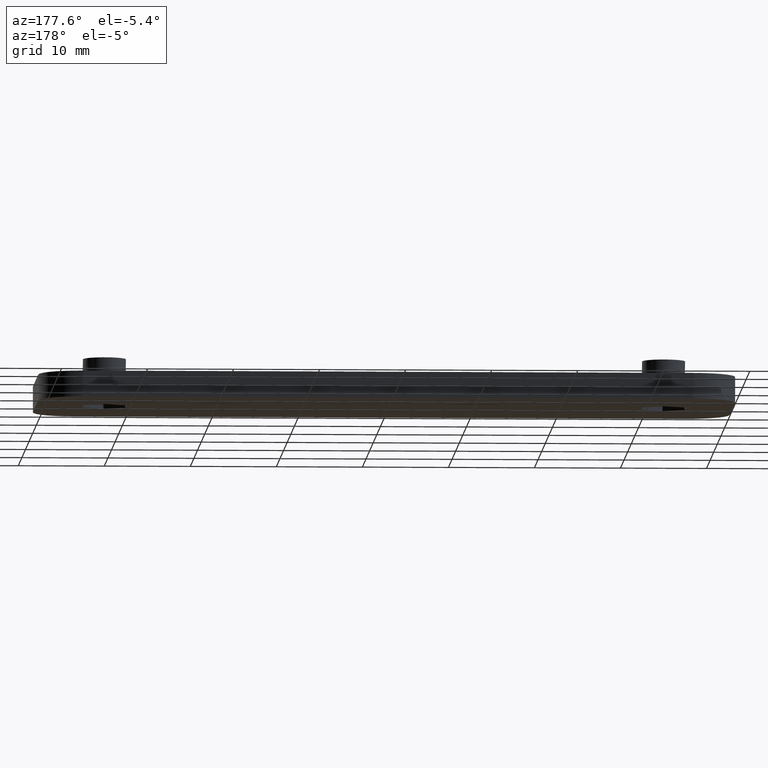
[diagram: clean part render]
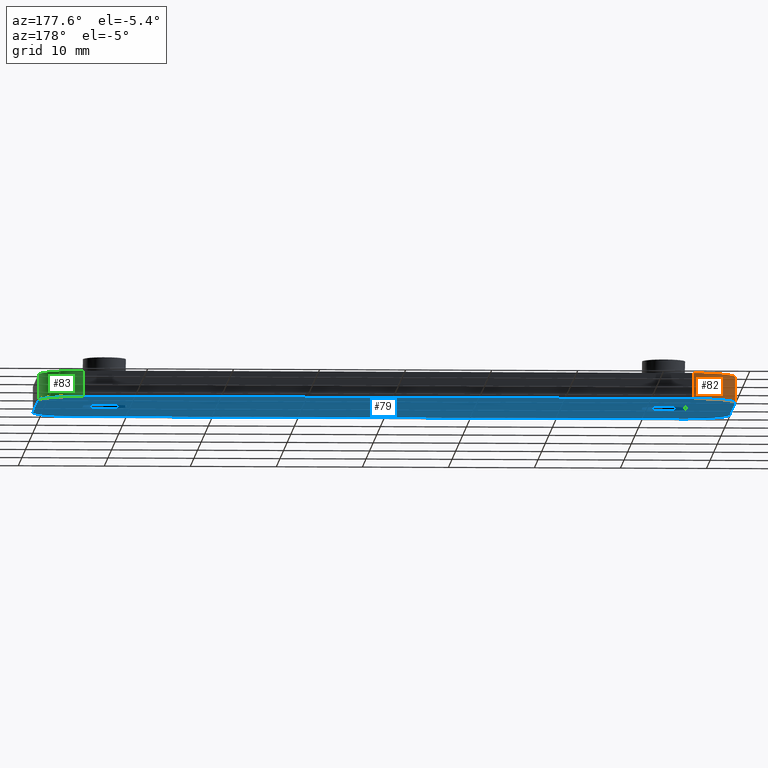
[diagram: same view with three faces highlighted in distinct colors, each labeled with its STEP entity id]
A machine part, auxiliary view with three faces highlighted in distinct colors.
Their STEP definitions:

[orange] entity #82 — the highlighted cylindrical surface (partial cylindrical patch) has radius 5 mm, axis along (-0, 0, 1).
#82 = ADVANCED_FACE( '', ( #160 ), #161, .T. );
#160 = FACE_OUTER_BOUND( '', #293, .T. );
#161 = CYLINDRICAL_SURFACE( '', #294, 5.00000000000000 );
#293 = EDGE_LOOP( '', ( #502, #503, #504, #505 ) );
#294 = AXIS2_PLACEMENT_3D( '', #506, #507, #508 );
#502 = ORIENTED_EDGE( '', *, *, #948, .F. );
#503 = ORIENTED_EDGE( '', *, *, #895, .T. );
#504 = ORIENTED_EDGE( '', *, *, #922, .T. );
#505 = ORIENTED_EDGE( '', *, *, #946, .F. );
#506 = CARTESIAN_POINT( '', ( -35.5000000000000, 7.50000000000001, 98.3338434434793 ) );
#507 = DIRECTION( '', ( -1.60751816480226E-016, 1.81794180051289E-016, 1.00000000000000 ) );
#508 = DIRECTION( '', ( -1.00000000000000, -5.90573087550522E-032, -1.60751816480226E-016 ) );
#895 = EDGE_CURVE( '', #1057, #1055, #1058, .T. );
#922 = EDGE_CURVE( '', #1055, #1108, #1110, .T. );
#946 = EDGE_CURVE( '', #1153, #1108, #1155, .T. );
#948 = EDGE_CURVE( '', #1057, #1153, #1157, .T. );
#1055 = VERTEX_POINT( '', #1314 );
#1057 = VERTEX_POINT( '', #1317 );
#1058 = CIRCLE( '', #1318, 5.00000000000000 );
#1108 = VERTEX_POINT( '', #1387 );
#1110 = LINE( '', #1390, #1391 );
#1153 = VERTEX_POINT( '', #1453 );
#1155 = CIRCLE( '', #1456, 5.00000000000000 );
#1157 = LINE( '', #1459, #1460 );
#1314 = CARTESIAN_POINT( '', ( -35.5000000000000, 12.5000000000000, 2.99999999999999 ) );
#1317 = CARTESIAN_POINT( '', ( -40.5000000000000, 7.50000000000000, 2.99999999999999 ) );
#1318 = AXIS2_PLACEMENT_3D( '', #1673, #1674, #1675 );
#1387 = CARTESIAN_POINT( '', ( -35.5000000000000, 12.5000000000000, -1.46431667789534E-014 ) );
#1390 = CARTESIAN_POINT( '', ( -35.5000000000000, 12.5000000000000, 98.3338434434793 ) );
#1391 = VECTOR( '', #1714, 1000.00000000000 );
#1453 = CARTESIAN_POINT( '', ( -40.5000000000000, 7.49999999999999, -1.43370151904978E-014 ) );
#1456 = AXIS2_PLACEMENT_3D( '', #1744, #1745, #1746 );
#1459 = CARTESIAN_POINT( '', ( -40.5000000000000, 7.50000000000001, 98.3338434434793 ) );
#1460 = VECTOR( '', #1748, 1000.00000000000 );
#1673 = CARTESIAN_POINT( '', ( -35.5000000000000, 7.50000000000000, 2.99999999999999 ) );
#1674 = DIRECTION( '', ( 0.000000000000000, -6.12303176911189E-017, -1.00000000000000 ) );
#1675 = DIRECTION( '', ( 0.000000000000000, 1.00000000000000, -6.12303176911189E-017 ) );
#1714 = DIRECTION( '', ( 1.60751816480226E-016, -1.81794180051289E-016, -1.00000000000000 ) );
#1744 = CARTESIAN_POINT( '', ( -35.5000000000000, 7.49999999999999, -1.43370151904978E-014 ) );
#1745 = DIRECTION( '', ( 0.000000000000000, -6.12303176911189E-017, -1.00000000000000 ) );
#1746 = DIRECTION( '', ( 0.000000000000000, 1.00000000000000, -6.12303176911189E-017 ) );
#1748 = DIRECTION( '', ( 1.60751816480226E-016, -1.81794180051289E-016, -1.00000000000000 ) );

[blue] entity #79 — the highlighted planar face has unit normal (0, -0, -1).
#79 = ADVANCED_FACE( '', ( #152, #153, #154 ), #155, .T. );
#152 = FACE_BOUND( '', #285, .T. );
#153 = FACE_BOUND( '', #286, .T. );
#154 = FACE_OUTER_BOUND( '', #287, .T. );
#155 = PLANE( '', #288 );
#285 = EDGE_LOOP( '', ( #465, #466, #467, #468, #469, #470 ) );
#286 = EDGE_LOOP( '', ( #471, #472, #473, #474, #475, #476 ) );
#287 = EDGE_LOOP( '', ( #477, #478, #479, #480, #481, #482, #483, #484 ) );
#288 = AXIS2_PLACEMENT_3D( '', #485, #486, #487 );
#465 = ORIENTED_EDGE( '', *, *, #928, .F. );
#466 = ORIENTED_EDGE( '', *, *, #929, .F. );
#467 = ORIENTED_EDGE( '', *, *, #930, .F. );
#468 = ORIENTED_EDGE( '', *, *, #931, .F. );
#469 = ORIENTED_EDGE( '', *, *, #932, .F. );
#470 = ORIENTED_EDGE( '', *, *, #933, .F. );
#471 = ORIENTED_EDGE( '', *, *, #934, .F. );
#472 = ORIENTED_EDGE( '', *, *, #935, .F. );
#473 = ORIENTED_EDGE( '', *, *, #936, .F. );
#474 = ORIENTED_EDGE( '', *, *, #937, .F. );
#475 = ORIENTED_EDGE( '', *, *, #938, .F. );
#476 = ORIENTED_EDGE( '', *, *, #939, .F. );
#477 = ORIENTED_EDGE( '', *, *, #921, .T. );
#478 = ORIENTED_EDGE( '', *, *, #940, .T. );
#479 = ORIENTED_EDGE( '', *, *, #941, .T. );
#480 = ORIENTED_EDGE( '', *, *, #942, .T. );
#481 = ORIENTED_EDGE( '', *, *, #943, .T. );
#482 = ORIENTED_EDGE( '', *, *, #944, .T. );
#483 = ORIENTED_EDGE( '', *, *, #945, .T. );
#484 = ORIENTED_EDGE( '', *, *, #946, .T. );
#485 = CARTESIAN_POINT( '', ( 53.0000000000000, -8.49741356322415E-031, -1.38777878078145E-014 ) );
#486 = DIRECTION( '', ( 0.000000000000000, -6.12303176911189E-017, -1.00000000000000 ) );
#487 = DIRECTION( '', ( 6.12303176911189E-017, 1.00000000000000, -6.12303176911189E-017 ) );
#921 = EDGE_CURVE( '', #1108, #1106, #1109, .T. );
#928 = EDGE_CURVE( '', #1119, #1120, #1121, .T. );
#929 = EDGE_CURVE( '', #1122, #1119, #1123, .T. );
#930 = EDGE_CURVE( '', #1124, #1122, #1125, .T. );
#931 = EDGE_CURVE( '', #1126, #1124, #1127, .T. );
#932 = EDGE_CURVE( '', #1128, #1126, #1129, .T. );
#933 = EDGE_CURVE( '', #1120, #1128, #1130, .T. );
#934 = EDGE_CURVE( '', #1131, #1132, #1133, .T. );
#935 = EDGE_CURVE( '', #1134, #1131, #1135, .T. );
#936 = EDGE_CURVE( '', #1136, #1134, #1137, .T. );
#937 = EDGE_CURVE( '', #1138, #1136, #1139, .T. );
#938 = EDGE_CURVE( '', #1140, #1138, #1141, .T. );
#939 = EDGE_CURVE( '', #1132, #1140, #1142, .T. );
#940 = EDGE_CURVE( '', #1106, #1143, #1144, .T. );
#941 = EDGE_CURVE( '', #1143, #1145, #1146, .T. );
#942 = EDGE_CURVE( '', #1145, #1147, #1148, .T. );
#943 = EDGE_CURVE( '', #1147, #1149, #1150, .T. );
#944 = EDGE_CURVE( '', #1149, #1151, #1152, .T. );
#945 = EDGE_CURVE( '', #1151, #1153, #1154, .T. );
#946 = EDGE_CURVE( '', #1153, #1108, #1155, .T. );
#1106 = VERTEX_POINT( '', #1384 );
#1108 = VERTEX_POINT( '', #1387 );
#1109 = LINE( '', #1388, #1389 );
#1119 = VERTEX_POINT( '', #1405 );
#1120 = VERTEX_POINT( '', #1406 );
#1121 = LINE( '', #1407, #1408 );
#1122 = VERTEX_POINT( '', #1409 );
#1123 = LINE( '', #1410, #1411 );
#1124 = VERTEX_POINT( '', #1412 );
#1125 = LINE( '', #1413, #1414 );
#1126 = VERTEX_POINT( '', #1415 );
#1127 = LINE( '', #1416, #1417 );
#1128 = VERTEX_POINT( '', #1418 );
#1129 = LINE( '', #1419, #1420 );
#1130 = LINE( '', #1421, #1422 );
#1131 = VERTEX_POINT( '', #1423 );
#1132 = VERTEX_POINT( '', #1424 );
#1133 = LINE( '', #1425, #1426 );
#1134 = VERTEX_POINT( '', #1427 );
#1135 = LINE( '', #1428, #1429 );
#1136 = VERTEX_POINT( '', #1430 );
#1137 = LINE( '', #1431, #1432 );
#1138 = VERTEX_POINT( '', #1433 );
#1139 = LINE( '', #1434, #1435 );
#1140 = VERTEX_POINT( '', #1436 );
#1141 = LINE( '', #1437, #1438 );
#1142 = LINE( '', #1439, #1440 );
#1143 = VERTEX_POINT( '', #1441 );
#1144 = CIRCLE( '', #1442, 5.00000000000000 );
#1145 = VERTEX_POINT( '', #1443 );
#1146 = LINE( '', #1444, #1445 );
#1147 = VERTEX_POINT( '', #1446 );
#1148 = CIRCLE( '', #1447, 5.00000000000000 );
#1149 = VERTEX_POINT( '', #1448 );
#1150 = LINE( '', #1449, #1450 );
#1151 = VERTEX_POINT( '', #1451 );
#1152 = CIRCLE( '', #1452, 5.00000000000000 );
#1153 = VERTEX_POINT( '', #1453 );
#1154 = LINE( '', #1454, #1455 );
#1155 = CIRCLE( '', #1456, 5.00000000000000 );
#1384 = CARTESIAN_POINT( '', ( 35.5000000000000, 12.5000000000000, -1.46431667789534E-014 ) );
#1387 = CARTESIAN_POINT( '', ( -35.5000000000000, 12.5000000000000, -1.46431667789534E-014 ) );
#1388 = CARTESIAN_POINT( '', ( -53.0000000000000, 12.5000000000000, -1.46431667789534E-014 ) );
#1389 = VECTOR( '', #1713, 1000.00000000000 );
#1405 = CARTESIAN_POINT( '', ( 32.5000000000000, 2.88675134594813, -1.40545445098221E-014 ) );
#1406 = CARTESIAN_POINT( '', ( 35.0000000000000, 1.44337567297408, -1.39661661588183E-014 ) );
#1407 = CARTESIAN_POINT( '', ( -13.7500000000000, 29.5892012959683, -1.56895440033931E-014 ) );
#1408 = VECTOR( '', #1720, 1000.00000000000 );
#1409 = CARTESIAN_POINT( '', ( 30.0000000000000, 1.44337567297406, -1.39661661588183E-014 ) );
#1410 = CARTESIAN_POINT( '', ( -15.0000000000000, -24.5373864405591, -1.23753558407493E-014 ) );
#1411 = VECTOR( '', #1721, 1000.00000000000 );
#1412 = CARTESIAN_POINT( '', ( 30.0000000000000, -1.44337567297407, -1.37894094568106E-014 ) );
#1413 = CARTESIAN_POINT( '', ( 30.0000000000000, 1.44337567297407, -1.39661661588183E-014 ) );
#1414 = VECTOR( '', #1722, 1000.00000000000 );
#1415 = CARTESIAN_POINT( '', ( 32.5000000000000, -2.88675134594813, -1.37010311058068E-014 ) );
#1416 = CARTESIAN_POINT( '', ( -16.2500000000000, 25.2590742770461, -1.54244089503816E-014 ) );
#1417 = VECTOR( '', #1723, 1000.00000000000 );
#1418 = CARTESIAN_POINT( '', ( 35.0000000000000, -1.44337567297406, -1.37894094568106E-014 ) );
#1419 = CARTESIAN_POINT( '', ( -12.5000000000000, -28.8675134594813, -1.21102207877378E-014 ) );
#1420 = VECTOR( '', #1724, 1000.00000000000 );
#1421 = CARTESIAN_POINT( '', ( 35.0000000000000, 1.44337567297411, -1.39661661588183E-014 ) );
#1422 = VECTOR( '', #1725, 1000.00000000000 );
#1423 = CARTESIAN_POINT( '', ( -32.5000000000000, 2.88675134594813, -1.40545445098221E-014 ) );
#1424 = CARTESIAN_POINT( '', ( -30.0000000000000, 1.44337567297407, -1.39661661588183E-014 ) );
#1425 = CARTESIAN_POINT( '', ( -30.0000000000000, 1.44337567297407, -1.39661661588183E-014 ) );
#1426 = VECTOR( '', #1726, 1000.00000000000 );
#1427 = CARTESIAN_POINT( '', ( -35.0000000000000, 1.44337567297406, -1.39661661588183E-014 ) );
#1428 = CARTESIAN_POINT( '', ( -31.2500000000000, 3.60843918243516, -1.40987336853240E-014 ) );
#1429 = VECTOR( '', #1727, 1000.00000000000 );
#1430 = CARTESIAN_POINT( '', ( -35.0000000000000, -1.44337567297407, -1.37894094568106E-014 ) );
#1431 = CARTESIAN_POINT( '', ( -35.0000000000000, 1.44337567297407, -1.39661661588183E-014 ) );
#1432 = VECTOR( '', #1728, 1000.00000000000 );
#1433 = CARTESIAN_POINT( '', ( -32.5000000000000, -2.88675134594813, -1.37010311058068E-014 ) );
#1434 = CARTESIAN_POINT( '', ( -32.5000000000000, -2.88675134594813, -1.37010311058068E-014 ) );
#1435 = VECTOR( '', #1729, 1000.00000000000 );
#1436 = CARTESIAN_POINT( '', ( -30.0000000000000, -1.44337567297406, -1.37894094568106E-014 ) );
#1437 = CARTESIAN_POINT( '', ( -28.7500000000000, -0.721687836487026, -1.38335986323125E-014 ) );
#1438 = VECTOR( '', #1730, 1000.00000000000 );
#1439 = CARTESIAN_POINT( '', ( -30.0000000000000, 1.44337567297407, -1.39661661588183E-014 ) );
#1440 = VECTOR( '', #1731, 1000.00000000000 );
#1441 = CARTESIAN_POINT( '', ( 40.5000000000000, 7.50000000000012, -1.43370151904979E-014 ) );
#1442 = AXIS2_PLACEMENT_3D( '', #1732, #1733, #1734 );
#1443 = CARTESIAN_POINT( '', ( 40.5000000000000, -7.49999999999992, -1.34185604251311E-014 ) );
#1444 = CARTESIAN_POINT( '', ( 40.5000000000000, -1.07105026715850E-029, -1.38777878078145E-014 ) );
#1445 = VECTOR( '', #1735, 1000.00000000000 );
#1446 = CARTESIAN_POINT( '', ( 35.5000000000000, -12.4999999999999, 1.46431667789534E-014 ) );
#1447 = AXIS2_PLACEMENT_3D( '', #1736, #1737, #1738 );
#1448 = CARTESIAN_POINT( '', ( -35.5000000000000, -12.5000000000000, -1.31124088366755E-014 ) );
#1449 = CARTESIAN_POINT( '', ( 53.0000000000000, -12.5000000000000, -1.31124088366755E-014 ) );
#1450 = VECTOR( '', #1739, 1000.00000000000 );
#1451 = CARTESIAN_POINT( '', ( -40.5000000000000, -7.50000000000002, -1.34185604251311E-014 ) );
#1452 = AXIS2_PLACEMENT_3D( '', #1740, #1741, #1742 );
#1453 = CARTESIAN_POINT( '', ( -40.5000000000000, 7.49999999999999, -1.43370151904978E-014 ) );
#1454 = CARTESIAN_POINT( '', ( -40.5000000000000, -3.61067054062111E-030, -1.38777878078145E-014 ) );
#1455 = VECTOR( '', #1743, 1000.00000000000 );
#1456 = AXIS2_PLACEMENT_3D( '', #1744, #1745, #1746 );
#1713 = DIRECTION( '', ( 1.00000000000000, 0.000000000000000, 0.000000000000000 ) );
#1720 = DIRECTION( '', ( 0.866025403784439, -0.500000000000000, 3.06151588455594E-017 ) );
#1721 = DIRECTION( '', ( 0.866025403784439, 0.500000000000000, -3.06151588455594E-017 ) );
#1722 = DIRECTION( '', ( 1.11022302462516E-016, 1.00000000000000, -6.12303176911189E-017 ) );
#1723 = DIRECTION( '', ( -0.866025403784439, 0.500000000000000, -3.06151588455594E-017 ) );
#1724 = DIRECTION( '', ( -0.866025403784439, -0.500000000000000, 3.06151588455594E-017 ) );
#1725 = DIRECTION( '', ( 4.99600361081321E-016, -1.00000000000000, 6.12303176911189E-017 ) );
#1726 = DIRECTION( '', ( 0.866025403784439, -0.500000000000000, 3.06151588455594E-017 ) );
#1727 = DIRECTION( '', ( 0.866025403784439, 0.500000000000000, -3.06151588455594E-017 ) );
#1728 = DIRECTION( '', ( 1.11022302462516E-016, 1.00000000000000, -6.12303176911189E-017 ) );
#1729 = DIRECTION( '', ( -0.866025403784439, 0.500000000000000, -3.06151588455594E-017 ) );
#1730 = DIRECTION( '', ( -0.866025403784439, -0.500000000000000, 3.06151588455594E-017 ) );
#1731 = DIRECTION( '', ( 4.99600361081321E-016, -1.00000000000000, 6.12303176911189E-017 ) );
#1732 = CARTESIAN_POINT( '', ( 35.5000000000000, 7.50000000000011, -1.43370151904979E-014 ) );
#1733 = DIRECTION( '', ( 0.000000000000000, -6.12303176911189E-017, -1.00000000000000 ) );
#1734 = DIRECTION( '', ( 0.000000000000000, 1.00000000000000, -6.12303176911189E-017 ) );
#1735 = DIRECTION( '', ( 7.88860905221012E-031, -1.00000000000000, 6.12303176911189E-017 ) );
#1736 = CARTESIAN_POINT( '', ( 35.5000000000000, -7.49999999999991, -1.34185604251311E-014 ) );
#1737 = DIRECTION( '', ( 0.000000000000000, -6.12303176911189E-017, -1.00000000000000 ) );
#1738 = DIRECTION( '', ( 0.000000000000000, 1.00000000000000, -6.12303176911189E-017 ) );
#1739 = DIRECTION( '', ( -1.00000000000000, 0.000000000000000, 0.000000000000000 ) );
#1740 = CARTESIAN_POINT( '', ( -35.5000000000000, -7.50000000000002, -1.34185604251311E-014 ) );
#1741 = DIRECTION( '', ( 0.000000000000000, -6.12303176911189E-017, -1.00000000000000 ) );
#1742 = DIRECTION( '', ( 0.000000000000000, 1.00000000000000, -6.12303176911189E-017 ) );
#1743 = DIRECTION( '', ( -2.95286543775261E-032, 1.00000000000000, -6.12303176911189E-017 ) );
#1744 = CARTESIAN_POINT( '', ( -35.5000000000000, 7.49999999999999, -1.43370151904978E-014 ) );
#1745 = DIRECTION( '', ( 0.000000000000000, -6.12303176911189E-017, -1.00000000000000 ) );
#1746 = DIRECTION( '', ( 0.000000000000000, 1.00000000000000, -6.12303176911189E-017 ) );

[green] entity #83 — the highlighted cylindrical surface (partial cylindrical patch) has radius 5 mm, axis along (-0, 0, 1).
#83 = ADVANCED_FACE( '', ( #162 ), #163, .T. );
#162 = FACE_OUTER_BOUND( '', #295, .T. );
#163 = CYLINDRICAL_SURFACE( '', #296, 5.00000000000000 );
#295 = EDGE_LOOP( '', ( #509, #510, #511, #512 ) );
#296 = AXIS2_PLACEMENT_3D( '', #513, #514, #515 );
#509 = ORIENTED_EDGE( '', *, *, #920, .F. );
#510 = ORIENTED_EDGE( '', *, *, #893, .T. );
#511 = ORIENTED_EDGE( '', *, *, #950, .T. );
#512 = ORIENTED_EDGE( '', *, *, #940, .F. );
#513 = CARTESIAN_POINT( '', ( 35.5000000000000, 7.50000000000012, 84.8970586018549 ) );
#514 = DIRECTION( '', ( -1.60751816480227E-016, 1.81794180051289E-016, 1.00000000000000 ) );
#515 = DIRECTION( '', ( 1.00000000000000, -2.77555756156289E-015, 1.60751816480227E-016 ) );
#893 = EDGE_CURVE( '', #1052, #1053, #1054, .T. );
#920 = EDGE_CURVE( '', #1052, #1106, #1107, .T. );
#940 = EDGE_CURVE( '', #1106, #1143, #1144, .T. );
#950 = EDGE_CURVE( '', #1053, #1143, #1159, .T. );
#1052 = VERTEX_POINT( '', #1311 );
#1053 = VERTEX_POINT( '', #1312 );
#1054 = CIRCLE( '', #1313, 5.00000000000000 );
#1106 = VERTEX_POINT( '', #1384 );
#1107 = LINE( '', #1385, #1386 );
#1143 = VERTEX_POINT( '', #1441 );
#1144 = CIRCLE( '', #1442, 5.00000000000000 );
#1159 = LINE( '', #1463, #1464 );
#1311 = CARTESIAN_POINT( '', ( 35.5000000000000, 12.5000000000000, 2.99999999999999 ) );
#1312 = CARTESIAN_POINT( '', ( 40.5000000000000, 7.50000000000012, 2.99999999999999 ) );
#1313 = AXIS2_PLACEMENT_3D( '', #1669, #1670, #1671 );
#1384 = CARTESIAN_POINT( '', ( 35.5000000000000, 12.5000000000000, -1.46431667789534E-014 ) );
#1385 = CARTESIAN_POINT( '', ( 35.5000000000000, 12.5000000000001, 84.8970586018549 ) );
#1386 = VECTOR( '', #1712, 1000.00000000000 );
#1441 = CARTESIAN_POINT( '', ( 40.5000000000000, 7.50000000000012, -1.43370151904979E-014 ) );
#1442 = AXIS2_PLACEMENT_3D( '', #1732, #1733, #1734 );
#1463 = CARTESIAN_POINT( '', ( 40.5000000000000, 7.50000000000012, 84.8970586018549 ) );
#1464 = VECTOR( '', #1750, 1000.00000000000 );
#1669 = CARTESIAN_POINT( '', ( 35.5000000000000, 7.50000000000011, 2.99999999999999 ) );
#1670 = DIRECTION( '', ( 0.000000000000000, -6.12303176911189E-017, -1.00000000000000 ) );
#1671 = DIRECTION( '', ( 0.000000000000000, 1.00000000000000, -6.12303176911189E-017 ) );
#1712 = DIRECTION( '', ( 1.60751816480227E-016, -1.81794180051289E-016, -1.00000000000000 ) );
#1732 = CARTESIAN_POINT( '', ( 35.5000000000000, 7.50000000000011, -1.43370151904979E-014 ) );
#1733 = DIRECTION( '', ( 0.000000000000000, -6.12303176911189E-017, -1.00000000000000 ) );
#1734 = DIRECTION( '', ( 0.000000000000000, 1.00000000000000, -6.12303176911189E-017 ) );
#1750 = DIRECTION( '', ( 1.60751816480227E-016, -1.81794180051289E-016, -1.00000000000000 ) );